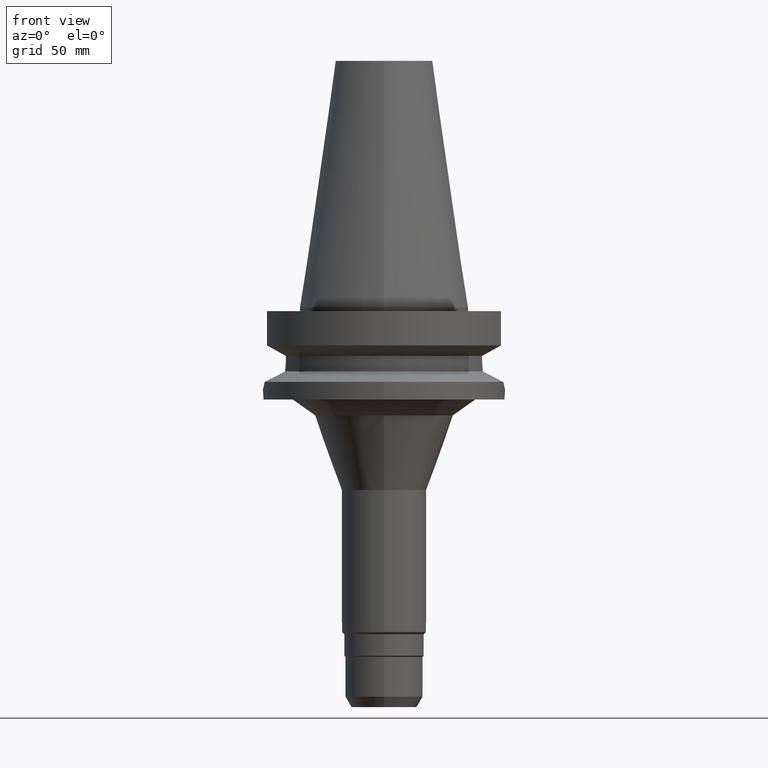
[diagram: clean part render]
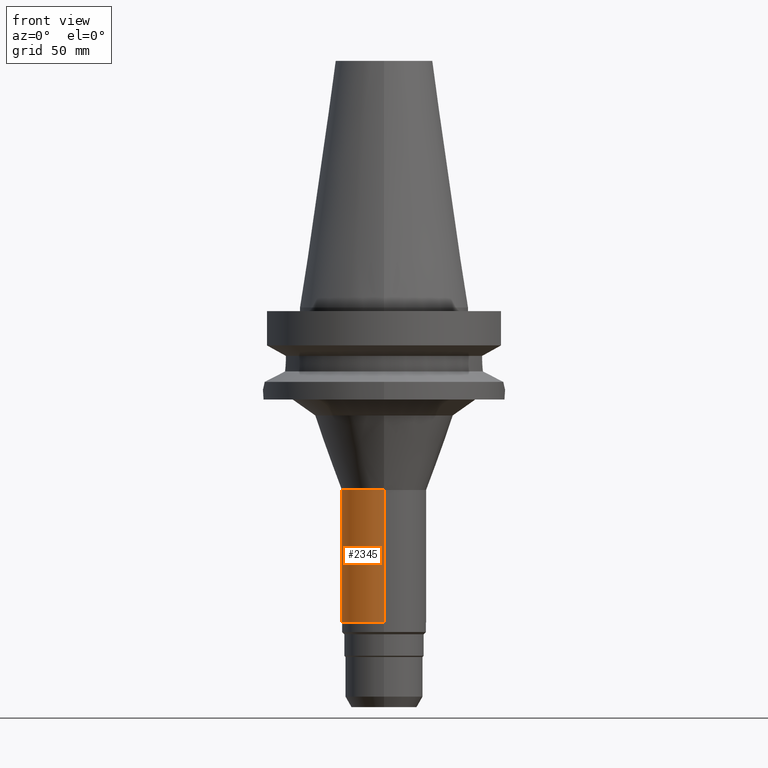
[diagram: same view with one face highlighted and labeled with its STEP entity id]
A machine part, front view. The second image highlights one B-rep face of the part: STEP entity #2345.
In plain terms, the highlighted cylindrical surface (partial cylindrical patch) has radius 17.5 mm, axis along (0, 0, -1).
Its self-contained STEP definition (entity closure, byte-faithful):
#716=CARTESIAN_POINT('',(0.E0,2.634705123686E-14,-1.3E2));
#717=DIRECTION('',(0.E0,0.E0,1.E0));
#718=DIRECTION('',(0.E0,1.E0,0.E0));
#719=AXIS2_PLACEMENT_3D('',#716,#717,#718);
#731=DIRECTION('',(0.E0,2.249417045519E-14,-1.E0));
#732=VECTOR('',#731,5.4647E1);
#733=CARTESIAN_POINT('',(0.E0,1.75E1,-7.5353E1));
#734=LINE('',#733,#732);
#735=DIRECTION('',(0.E0,-2.236414634852E-14,-1.E0));
#736=VECTOR('',#735,5.4647E1);
#737=CARTESIAN_POINT('',(0.E0,-1.75E1,-7.5353E1));
#738=LINE('',#737,#736);
#743=CARTESIAN_POINT('',(0.E0,0.E0,-7.5353E1));
#744=DIRECTION('',(0.E0,0.E0,-1.E0));
#745=DIRECTION('',(0.E0,-1.E0,0.E0));
#746=AXIS2_PLACEMENT_3D('',#743,#744,#745);
#932=CARTESIAN_POINT('',(0.E0,1.75E1,-7.5353E1));
#933=VERTEX_POINT('',#932);
#934=CARTESIAN_POINT('',(0.E0,-1.75E1,-7.5353E1));
#935=VERTEX_POINT('',#934);
#936=CARTESIAN_POINT('',(0.E0,1.75E1,-1.3E2));
#937=VERTEX_POINT('',#936);
#938=CARTESIAN_POINT('',(0.E0,-1.75E1,-1.3E2));
#939=VERTEX_POINT('',#938);
#2333=CARTESIAN_POINT('',(0.E0,2.634705123686E-14,1.1514E2));
#2334=DIRECTION('',(0.E0,0.E0,-1.E0));
#2335=DIRECTION('',(0.E0,-1.E0,0.E0));
#2336=AXIS2_PLACEMENT_3D('',#2333,#2334,#2335);
#2337=CYLINDRICAL_SURFACE('',#2336,1.75E1);
#2338=ORIENTED_EDGE('',*,*,#2316,.F.);
#2340=ORIENTED_EDGE('',*,*,#2339,.F.);
#2341=ORIENTED_EDGE('',*,*,#2319,.T.);
#2342=ORIENTED_EDGE('',*,*,#2295,.F.);
#2343=EDGE_LOOP('',(#2338,#2340,#2341,#2342));
#2344=FACE_OUTER_BOUND('',#2343,.F.);
#720=CIRCLE('',#719,1.75E1);
#747=CIRCLE('',#746,1.75E1);
#2295=EDGE_CURVE('',#937,#939,#720,.T.);
#2316=EDGE_CURVE('',#933,#937,#734,.T.);
#2319=EDGE_CURVE('',#935,#939,#738,.T.);
#2339=EDGE_CURVE('',#935,#933,#747,.T.);
#2345=ADVANCED_FACE('',(#2344),#2337,.T.);